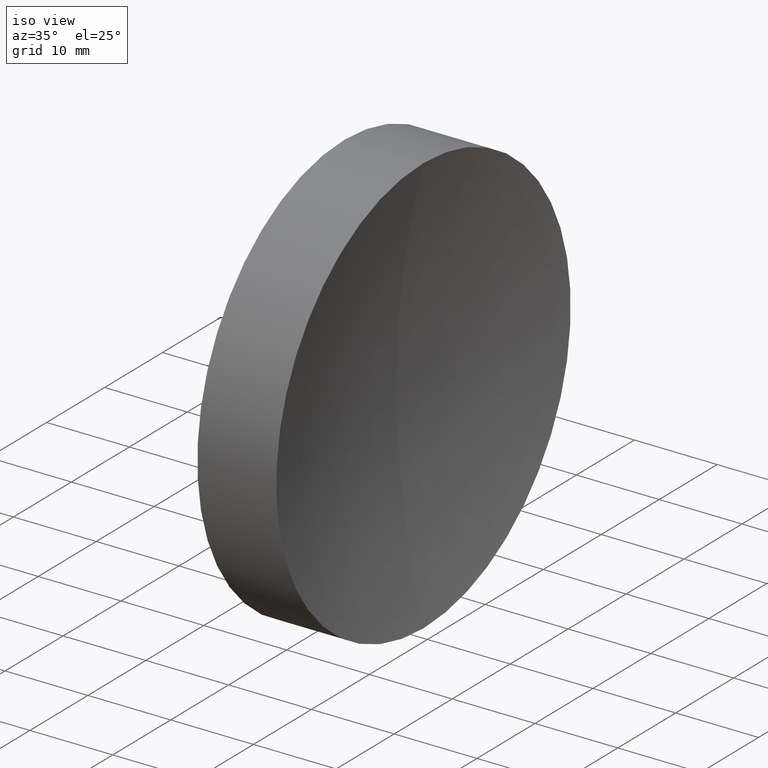
[diagram: clean part render]
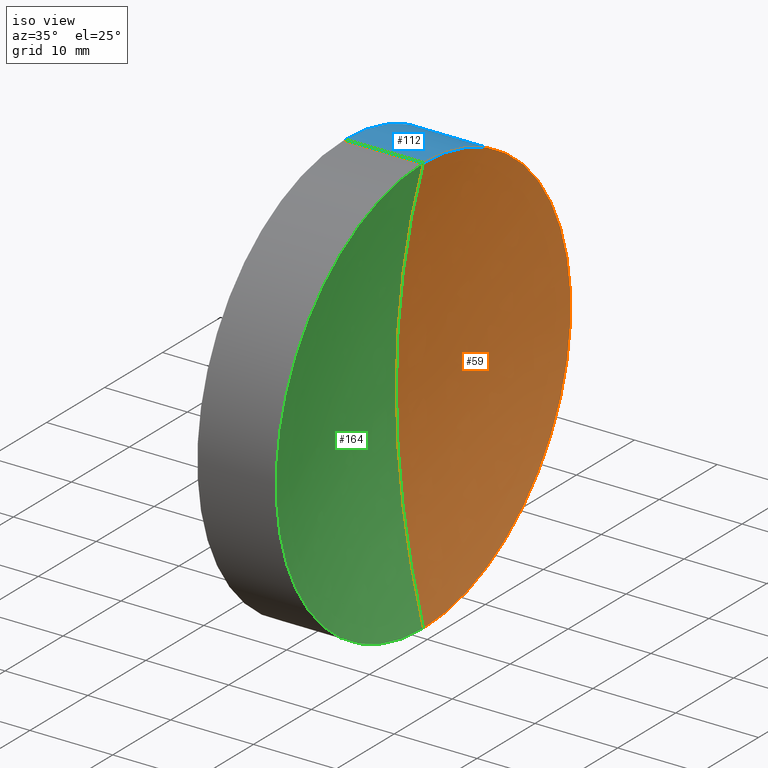
[diagram: same view with three faces highlighted in distinct colors, each labeled with its STEP entity id]
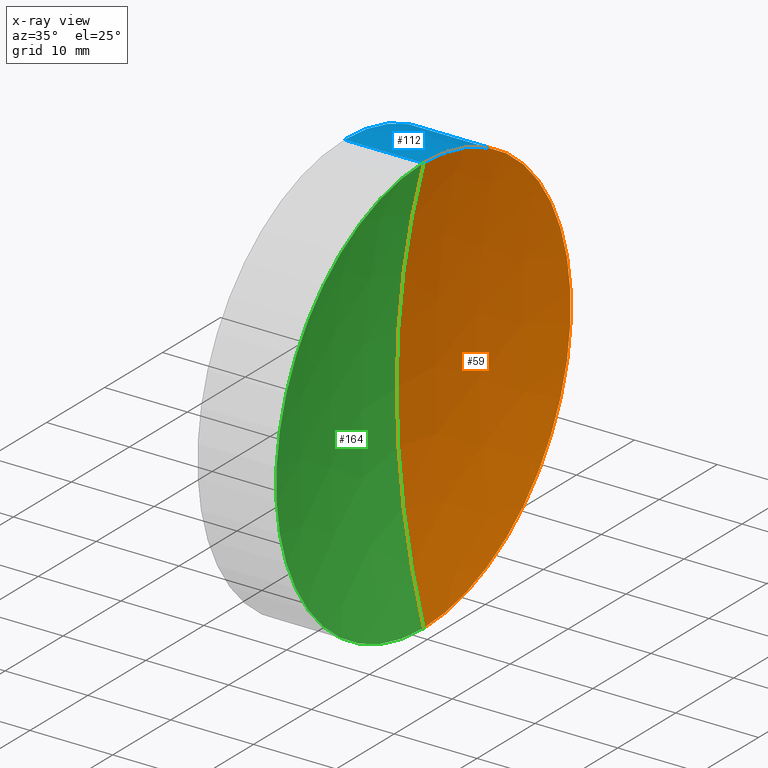
[diagram: x-ray of the same camera — body ghosted, the three highlighted faces saturated]
A machine part, iso view with three faces highlighted in distinct colors.
The next image is the same camera in x-ray (body ghosted, the three faces saturated) — at least one of them is partly hidden behind the body in this view.
Their STEP definitions:

[orange] entity #59 — the highlighted spherical surface has radius 100 mm.
#5 = DIRECTION ( 'NONE',  ( -1.000000000000000000, -0.0000000000000000000, -0.0000000000000000000 ) ) ;
#6 = FACE_OUTER_BOUND ( 'NONE', #130, .T. ) ;
#14 = VERTEX_POINT ( 'NONE', #116 ) ;
#15 = DIRECTION ( 'NONE',  ( 0.0000000000000000000, 1.000000000000000000, 0.0000000000000000000 ) ) ;
#26 = CIRCLE ( 'NONE', #44, 25.40000000000006300 ) ;
#31 = DIRECTION ( 'NONE',  ( 0.0000000000000000000, 0.0000000000000000000, 1.000000000000000000 ) ) ;
#35 = ORIENTED_EDGE ( 'NONE', *, *, #78, .F. ) ;
#39 = SPHERICAL_SURFACE ( 'NONE', #133, 99.99999999999997200 ) ;
#40 = AXIS2_PLACEMENT_3D ( 'NONE', #159, #83, #95 ) ;
#41 = CARTESIAN_POINT ( 'NONE',  ( 106.2499999999999600, 0.0000000000000000000, 0.0000000000000000000 ) ) ;
#44 = AXIS2_PLACEMENT_3D ( 'NONE', #108, #5, #31 ) ;
#48 = DIRECTION ( 'NONE',  ( -0.0000000000000000000, 1.000000000000000000, 1.224646799147353200E-016 ) ) ;
#58 = ORIENTED_EDGE ( 'NONE', *, *, #82, .F. ) ;
#59 = ADVANCED_FACE ( 'NONE', ( #6 ), #39, .F. ) ;
#61 = CARTESIAN_POINT ( 'NONE',  ( 9.529578164691605100, 3.110602869834284000E-015, -25.40000000000005500 ) ) ;
#62 = DIRECTION ( 'NONE',  ( 0.0000000000000000000, -1.224646799147353200E-016, 1.000000000000000000 ) ) ;
#68 = VERTEX_POINT ( 'NONE', #61 ) ;
#77 = CIRCLE ( 'NONE', #127, 99.99999999999997200 ) ;
#78 = EDGE_CURVE ( 'NONE', #68, #92, #77, .T. ) ;
#82 = EDGE_CURVE ( 'NONE', #14, #68, #26, .T. ) ;
#83 = DIRECTION ( 'NONE',  ( 0.0000000000000000000, -1.000000000000000000, 0.0000000000000000000 ) ) ;
#84 = EDGE_CURVE ( 'NONE', #14, #92, #122, .T. ) ;
#92 = VERTEX_POINT ( 'NONE', #123 ) ;
#95 = DIRECTION ( 'NONE',  ( 0.0000000000000000000, 0.0000000000000000000, -1.000000000000000000 ) ) ;
#108 = CARTESIAN_POINT ( 'NONE',  ( 9.529578164691605100, 0.0000000000000000000, 0.0000000000000000000 ) ) ;
#110 = DIRECTION ( 'NONE',  ( 0.0000000000000000000, 0.0000000000000000000, 1.000000000000000000 ) ) ;
#111 = CARTESIAN_POINT ( 'NONE',  ( 106.2499999999999600, 0.0000000000000000000, 0.0000000000000000000 ) ) ;
#116 = CARTESIAN_POINT ( 'NONE',  ( 9.529578164691605100, 0.0000000000000000000, 25.40000000000005500 ) ) ;
#122 = CIRCLE ( 'NONE', #40, 99.99999999999997200 ) ;
#123 = CARTESIAN_POINT ( 'NONE',  ( 6.249999999999977800, 0.0000000000000000000, 6.123233995736764500E-015 ) ) ;
#127 = AXIS2_PLACEMENT_3D ( 'NONE', #111, #48, #62 ) ;
#130 = EDGE_LOOP ( 'NONE', ( #35, #58, #134 ) ) ;
#133 = AXIS2_PLACEMENT_3D ( 'NONE', #41, #15, #110 ) ;
#134 = ORIENTED_EDGE ( 'NONE', *, *, #84, .T. ) ;
#159 = CARTESIAN_POINT ( 'NONE',  ( 106.2499999999999600, 0.0000000000000000000, 0.0000000000000000000 ) ) ;

[blue] entity #112 — the highlighted cylindrical surface (partial cylindrical patch) has radius 25.4 mm, axis along (-1, -0, -0).
#1 = ORIENTED_EDGE ( 'NONE', *, *, #132, .T. ) ;
#5 = DIRECTION ( 'NONE',  ( -1.000000000000000000, -0.0000000000000000000, -0.0000000000000000000 ) ) ;
#14 = VERTEX_POINT ( 'NONE', #116 ) ;
#19 = DIRECTION ( 'NONE',  ( -1.000000000000000000, -0.0000000000000000000, -0.0000000000000000000 ) ) ;
#26 = CIRCLE ( 'NONE', #44, 25.40000000000006300 ) ;
#31 = DIRECTION ( 'NONE',  ( 0.0000000000000000000, 0.0000000000000000000, 1.000000000000000000 ) ) ;
#32 = LINE ( 'NONE', #135, #63 ) ;
#34 = DIRECTION ( 'NONE',  ( -1.000000000000000000, -0.0000000000000000000, -0.0000000000000000000 ) ) ;
#42 = ORIENTED_EDGE ( 'NONE', *, *, #107, .F. ) ;
#44 = AXIS2_PLACEMENT_3D ( 'NONE', #108, #5, #31 ) ;
#53 = DIRECTION ( 'NONE',  ( -1.000000000000000000, -0.0000000000000000000, -0.0000000000000000000 ) ) ;
#54 = ORIENTED_EDGE ( 'NONE', *, *, #99, .F. ) ;
#57 = LINE ( 'NONE', #136, #91 ) ;
#61 = CARTESIAN_POINT ( 'NONE',  ( 9.529578164691605100, 3.110602869834284000E-015, -25.40000000000005500 ) ) ;
#63 = VECTOR ( 'NONE', #19, 1000.000000000000000 ) ;
#68 = VERTEX_POINT ( 'NONE', #61 ) ;
#73 = CARTESIAN_POINT ( 'NONE',  ( 0.0000000000000000000, 0.0000000000000000000, 0.0000000000000000000 ) ) ;
#74 = CARTESIAN_POINT ( 'NONE',  ( 0.0000000000000000000, 0.0000000000000000000, 0.0000000000000000000 ) ) ;
#82 = EDGE_CURVE ( 'NONE', #14, #68, #26, .T. ) ;
#86 = VERTEX_POINT ( 'NONE', #113 ) ;
#88 = CIRCLE ( 'NONE', #162, 25.39999999999999900 ) ;
#89 = VERTEX_POINT ( 'NONE', #151 ) ;
#90 = ORIENTED_EDGE ( 'NONE', *, *, #82, .T. ) ;
#91 = VECTOR ( 'NONE', #34, 1000.000000000000000 ) ;
#99 = EDGE_CURVE ( 'NONE', #14, #89, #57, .T. ) ;
#106 = EDGE_LOOP ( 'NONE', ( #90, #1, #42, #54 ) ) ;
#107 = EDGE_CURVE ( 'NONE', #89, #86, #88, .T. ) ;
#108 = CARTESIAN_POINT ( 'NONE',  ( 9.529578164691605100, 0.0000000000000000000, 0.0000000000000000000 ) ) ;
#112 = ADVANCED_FACE ( 'NONE', ( #128 ), #166, .T. ) ;
#113 = CARTESIAN_POINT ( 'NONE',  ( 0.0000000000000000000, 3.110602869834279200E-015, -25.39999999999999900 ) ) ;
#116 = CARTESIAN_POINT ( 'NONE',  ( 9.529578164691605100, 0.0000000000000000000, 25.40000000000005500 ) ) ;
#128 = FACE_OUTER_BOUND ( 'NONE', #106, .T. ) ;
#132 = EDGE_CURVE ( 'NONE', #68, #86, #32, .T. ) ;
#135 = CARTESIAN_POINT ( 'NONE',  ( 0.0000000000000000000, 3.110602869834280800E-015, -25.40000000000003100 ) ) ;
#136 = CARTESIAN_POINT ( 'NONE',  ( 0.0000000000000000000, 0.0000000000000000000, 25.40000000000003100 ) ) ;
#139 = DIRECTION ( 'NONE',  ( -1.000000000000000000, -0.0000000000000000000, -0.0000000000000000000 ) ) ;
#145 = DIRECTION ( 'NONE',  ( 0.0000000000000000000, 0.0000000000000000000, 1.000000000000000000 ) ) ;
#146 = AXIS2_PLACEMENT_3D ( 'NONE', #73, #139, #145 ) ;
#151 = CARTESIAN_POINT ( 'NONE',  ( 0.0000000000000000000, 0.0000000000000000000, 25.39999999999999900 ) ) ;
#162 = AXIS2_PLACEMENT_3D ( 'NONE', #74, #53, #163 ) ;
#163 = DIRECTION ( 'NONE',  ( 0.0000000000000000000, 0.0000000000000000000, 1.000000000000000000 ) ) ;
#166 = CYLINDRICAL_SURFACE ( 'NONE', #146, 25.40000000000003100 ) ;

[green] entity #164 — the highlighted spherical surface has radius 100 mm.
#12 = ORIENTED_EDGE ( 'NONE', *, *, #78, .T. ) ;
#14 = VERTEX_POINT ( 'NONE', #116 ) ;
#23 = ORIENTED_EDGE ( 'NONE', *, *, #66, .F. ) ;
#27 = SPHERICAL_SURFACE ( 'NONE', #47, 99.99999999999997200 ) ;
#40 = AXIS2_PLACEMENT_3D ( 'NONE', #159, #83, #95 ) ;
#43 = DIRECTION ( 'NONE',  ( 0.0000000000000000000, 1.000000000000000000, 0.0000000000000000000 ) ) ;
#47 = AXIS2_PLACEMENT_3D ( 'NONE', #67, #43, #104 ) ;
#48 = DIRECTION ( 'NONE',  ( -0.0000000000000000000, 1.000000000000000000, 1.224646799147353200E-016 ) ) ;
#55 = DIRECTION ( 'NONE',  ( 0.0000000000000000000, 0.0000000000000000000, 1.000000000000000000 ) ) ;
#61 = CARTESIAN_POINT ( 'NONE',  ( 9.529578164691605100, 3.110602869834284000E-015, -25.40000000000005500 ) ) ;
#62 = DIRECTION ( 'NONE',  ( 0.0000000000000000000, -1.224646799147353200E-016, 1.000000000000000000 ) ) ;
#66 = EDGE_CURVE ( 'NONE', #68, #14, #70, .T. ) ;
#67 = CARTESIAN_POINT ( 'NONE',  ( 106.2499999999999600, 0.0000000000000000000, 0.0000000000000000000 ) ) ;
#68 = VERTEX_POINT ( 'NONE', #61 ) ;
#70 = CIRCLE ( 'NONE', #160, 25.40000000000006300 ) ;
#76 = CARTESIAN_POINT ( 'NONE',  ( 9.529578164691605100, 0.0000000000000000000, 0.0000000000000000000 ) ) ;
#77 = CIRCLE ( 'NONE', #127, 99.99999999999997200 ) ;
#78 = EDGE_CURVE ( 'NONE', #68, #92, #77, .T. ) ;
#83 = DIRECTION ( 'NONE',  ( 0.0000000000000000000, -1.000000000000000000, 0.0000000000000000000 ) ) ;
#84 = EDGE_CURVE ( 'NONE', #14, #92, #122, .T. ) ;
#92 = VERTEX_POINT ( 'NONE', #123 ) ;
#95 = DIRECTION ( 'NONE',  ( 0.0000000000000000000, 0.0000000000000000000, -1.000000000000000000 ) ) ;
#100 = FACE_OUTER_BOUND ( 'NONE', #154, .T. ) ;
#104 = DIRECTION ( 'NONE',  ( 0.0000000000000000000, 0.0000000000000000000, 1.000000000000000000 ) ) ;
#111 = CARTESIAN_POINT ( 'NONE',  ( 106.2499999999999600, 0.0000000000000000000, 0.0000000000000000000 ) ) ;
#116 = CARTESIAN_POINT ( 'NONE',  ( 9.529578164691605100, 0.0000000000000000000, 25.40000000000005500 ) ) ;
#122 = CIRCLE ( 'NONE', #40, 99.99999999999997200 ) ;
#123 = CARTESIAN_POINT ( 'NONE',  ( 6.249999999999977800, 0.0000000000000000000, 6.123233995736764500E-015 ) ) ;
#124 = ORIENTED_EDGE ( 'NONE', *, *, #84, .F. ) ;
#127 = AXIS2_PLACEMENT_3D ( 'NONE', #111, #48, #62 ) ;
#140 = DIRECTION ( 'NONE',  ( -1.000000000000000000, -0.0000000000000000000, -0.0000000000000000000 ) ) ;
#154 = EDGE_LOOP ( 'NONE', ( #23, #12, #124 ) ) ;
#159 = CARTESIAN_POINT ( 'NONE',  ( 106.2499999999999600, 0.0000000000000000000, 0.0000000000000000000 ) ) ;
#160 = AXIS2_PLACEMENT_3D ( 'NONE', #76, #140, #55 ) ;
#164 = ADVANCED_FACE ( 'NONE', ( #100 ), #27, .F. ) ;